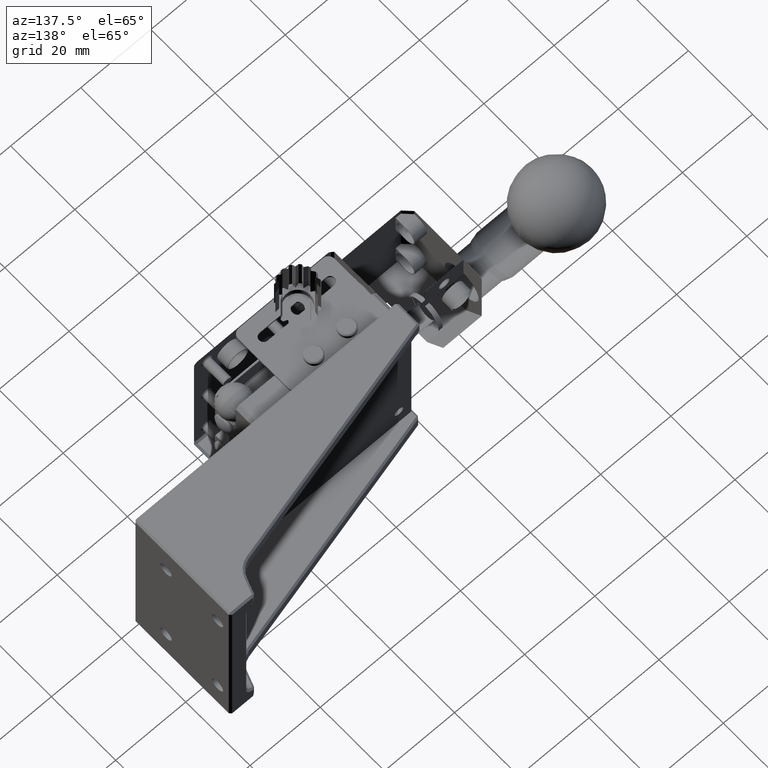
[diagram: clean part render]
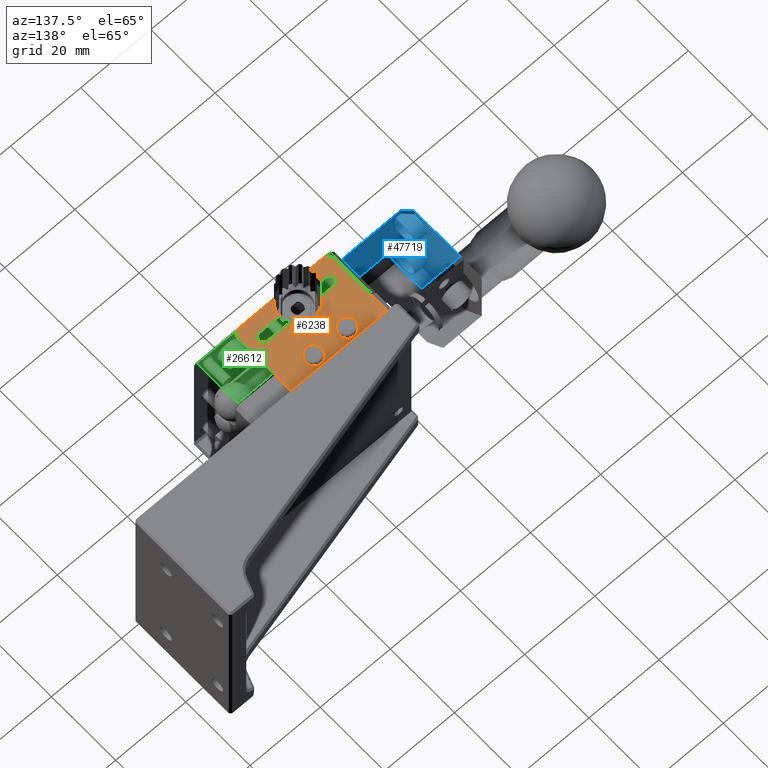
[diagram: same view with three faces highlighted in distinct colors, each labeled with its STEP entity id]
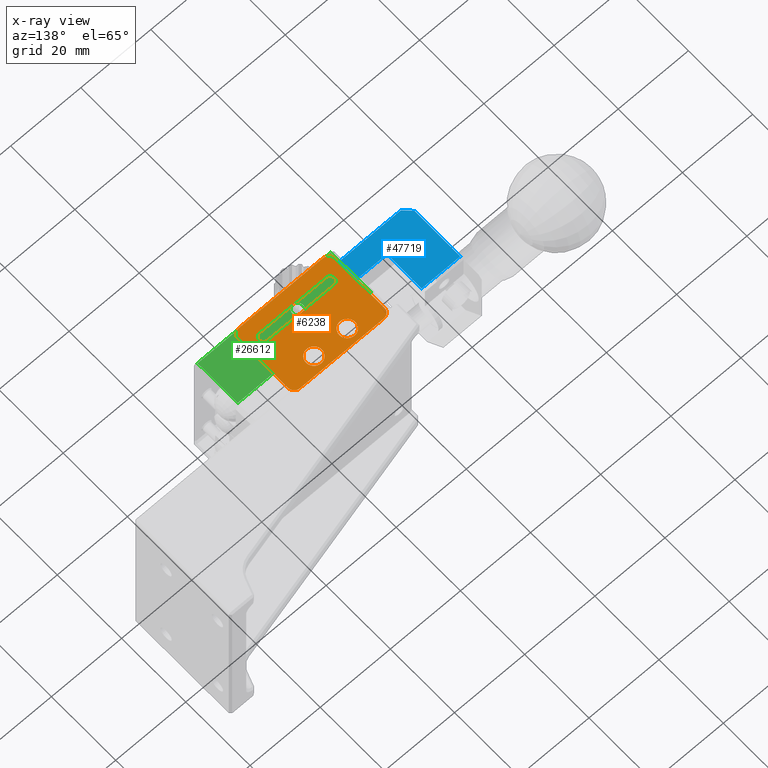
[diagram: x-ray of the same camera — body ghosted, the three highlighted faces saturated]
A machine part, auxiliary view with three faces highlighted in distinct colors.
The next image is the same camera in x-ray (body ghosted, the three faces saturated) — at least one of them is partly hidden behind the body in this view.
Their STEP definitions:

[orange] entity #6238 — the highlighted planar face has unit normal (0, 0, 1).
#180 = DIRECTION ( 'NONE',  ( 1.000000000000000000, 0.000000000000000000, 0.000000000000000000 ) ) ;
#458 = EDGE_LOOP ( 'NONE', ( #10148 ) ) ;
#655 = LINE ( 'NONE', #34571, #936 ) ;
#936 = VECTOR ( 'NONE', #39014, 1000.000000000000000 ) ;
#1630 = VECTOR ( 'NONE', #16943, 1000.000000000000000 ) ;
#1890 = EDGE_CURVE ( 'NONE', #22655, #7195, #43575, .T. ) ;
#2200 = EDGE_CURVE ( 'NONE', #26678, #38284, #20184, .T. ) ;
#2234 = DIRECTION ( 'NONE',  ( -1.000000000000000000, -0.000000000000000000, -0.000000000000000000 ) ) ;
#2297 = VERTEX_POINT ( 'NONE', #25562 ) ;
#2358 = EDGE_CURVE ( 'NONE', #36858, #7195, #36539, .T. ) ;
#3955 = VERTEX_POINT ( 'NONE', #11288 ) ;
#5935 = CARTESIAN_POINT ( 'NONE',  ( 48.25000000000000000, 19.00000000000000000, 20.50000000000000000 ) ) ;
#6238 = ADVANCED_FACE ( 'NONE', ( #46137, #45880, #42372, #35187 ), #30743, .T. ) ;
#7015 = DIRECTION ( 'NONE',  ( -1.000000000000000000, 0.000000000000000000, 0.000000000000000000 ) ) ;
#7195 = VERTEX_POINT ( 'NONE', #22923 ) ;
#7481 = CARTESIAN_POINT ( 'NONE',  ( 48.25000000000000000, 17.25000000000000000, 20.50000000000000000 ) ) ;
#8823 = ORIENTED_EDGE ( 'NONE', *, *, #18740, .T. ) ;
#9562 = CIRCLE ( 'NONE', #35677, 1.750000000000001554 ) ;
#9588 = VERTEX_POINT ( 'NONE', #28184 ) ;
#10148 = ORIENTED_EDGE ( 'NONE', *, *, #26745, .T. ) ;
#10933 = DIRECTION ( 'NONE',  ( -1.000000000000000000, 0.000000000000000000, 0.000000000000000000 ) ) ;
#11288 = CARTESIAN_POINT ( 'NONE',  ( 26.75000000000000355, 3.750000000000000000, 20.50000000000000000 ) ) ;
#11339 = VERTEX_POINT ( 'NONE', #36357 ) ;
#11784 = DIRECTION ( 'NONE',  ( 0.000000000000000000, 0.000000000000000000, -1.000000000000000000 ) ) ;
#12381 = ORIENTED_EDGE ( 'NONE', *, *, #2358, .F. ) ;
#12706 = EDGE_LOOP ( 'NONE', ( #45047, #14528, #12381, #16021, #48771, #46852, #8823, #26411 ) ) ;
#13489 = LINE ( 'NONE', #17422, #1630 ) ;
#14239 = CARTESIAN_POINT ( 'NONE',  ( 24.25000000000000000, 17.25000000000000000, 20.50000000000000000 ) ) ;
#14382 = AXIS2_PLACEMENT_3D ( 'NONE', #27354, #42674, #31054 ) ;
#14528 = ORIENTED_EDGE ( 'NONE', *, *, #1890, .T. ) ;
#14896 = DIRECTION ( 'NONE',  ( -0.000000000000000000, -0.000000000000000000, 1.000000000000000000 ) ) ;
#15906 = DIRECTION ( 'NONE',  ( 0.000000000000000000, 0.000000000000000000, 1.000000000000000000 ) ) ;
#16021 = ORIENTED_EDGE ( 'NONE', *, *, #21213, .T. ) ;
#16052 = AXIS2_PLACEMENT_3D ( 'NONE', #7481, #41392, #37914 ) ;
#16780 = AXIS2_PLACEMENT_3D ( 'NONE', #14239, #36732, #7015 ) ;
#16943 = DIRECTION ( 'NONE',  ( 1.000000000000000000, 0.000000000000000000, -0.000000000000000000 ) ) ;
#17422 = CARTESIAN_POINT ( 'NONE',  ( 24.25000000000000000, 6.250000000000000000, 20.50000000000000000 ) ) ;
#17621 = VECTOR ( 'NONE', #43871, 1000.000000000000000 ) ;
#18206 = EDGE_LOOP ( 'NONE', ( #43235, #25048, #35492, #31554 ) ) ;
#18740 = EDGE_CURVE ( 'NONE', #45980, #32410, #9562, .T. ) ;
#20184 = CIRCLE ( 'NONE', #39795, 1.250000000000001110 ) ;
#20547 = CARTESIAN_POINT ( 'NONE',  ( 22.50000000000000355, 17.25000000000000000, 20.50000000000000000 ) ) ;
#21213 = EDGE_CURVE ( 'NONE', #36858, #11339, #655, .T. ) ;
#21692 = LINE ( 'NONE', #47949, #27967 ) ;
#21693 = CIRCLE ( 'NONE', #38255, 2.250000000000001776 ) ;
#21720 = CARTESIAN_POINT ( 'NONE',  ( 45.75000000000000000, 3.750000000000000000, 20.50000000000000000 ) ) ;
#21840 = DIRECTION ( 'NONE',  ( -0.000000000000000000, -0.000000000000000000, -1.000000000000000000 ) ) ;
#21851 = EDGE_CURVE ( 'NONE', #44545, #22655, #37360, .T. ) ;
#21889 = LINE ( 'NONE', #36957, #41229 ) ;
#22392 = VERTEX_POINT ( 'NONE', #45459 ) ;
#22655 = VERTEX_POINT ( 'NONE', #26796 ) ;
#22665 = CARTESIAN_POINT ( 'NONE',  ( 50.00000000000000000, 17.25000000000000000, 20.50000000000000000 ) ) ;
#22923 = CARTESIAN_POINT ( 'NONE',  ( 24.25000000000000000, 19.00000000000000000, 20.50000000000000000 ) ) ;
#22953 = AXIS2_PLACEMENT_3D ( 'NONE', #27033, #42119, #38395 ) ;
#24910 = EDGE_CURVE ( 'NONE', #38284, #3955, #21692, .T. ) ;
#25048 = ORIENTED_EDGE ( 'NONE', *, *, #27452, .T. ) ;
#25380 = DIRECTION ( 'NONE',  ( -1.000000000000000000, -0.000000000000000000, 0.000000000000000000 ) ) ;
#25538 = DIRECTION ( 'NONE',  ( 1.000000000000000000, 0.000000000000000000, 0.000000000000000000 ) ) ;
#25562 = CARTESIAN_POINT ( 'NONE',  ( 43.25000000000000711, 15.50000000000000000, 20.50000000000000000 ) ) ;
#26411 = ORIENTED_EDGE ( 'NONE', *, *, #40251, .T. ) ;
#26678 = VERTEX_POINT ( 'NONE', #34334 ) ;
#26745 = EDGE_CURVE ( 'NONE', #2297, #2297, #21693, .T. ) ;
#26796 = CARTESIAN_POINT ( 'NONE',  ( 48.25000000000000000, 19.00000000000000711, 20.50000000000000000 ) ) ;
#27033 = CARTESIAN_POINT ( 'NONE',  ( 26.75000000000000355, 4.999999999999999112, 20.50000000000000000 ) ) ;
#27049 = CARTESIAN_POINT ( 'NONE',  ( 24.25000000000000000, 17.25000000000000000, 20.50000000000000000 ) ) ;
#27293 = DIRECTION ( 'NONE',  ( 1.000000000000000000, 0.000000000000000000, -0.000000000000000000 ) ) ;
#27354 = CARTESIAN_POINT ( 'NONE',  ( 24.25000000000000000, 1.749999999999998002, 20.50000000000000000 ) ) ;
#27452 = EDGE_CURVE ( 'NONE', #3955, #28280, #44304, .T. ) ;
#27967 = VECTOR ( 'NONE', #25380, 1000.000000000000000 ) ;
#28184 = CARTESIAN_POINT ( 'NONE',  ( 33.75000000000000000, 15.50000000000000000, 20.50000000000000000 ) ) ;
#28280 = VERTEX_POINT ( 'NONE', #39436 ) ;
#28302 = EDGE_CURVE ( 'NONE', #28280, #26678, #13489, .T. ) ;
#29032 = ORIENTED_EDGE ( 'NONE', *, *, #42357, .T. ) ;
#29736 = CARTESIAN_POINT ( 'NONE',  ( 48.25000000000000000, 1.749999999999998002, 20.50000000000000000 ) ) ;
#30743 = PLANE ( 'NONE',  #44559 ) ;
#31054 = DIRECTION ( 'NONE',  ( -1.000000000000000000, 0.000000000000000000, 0.000000000000000000 ) ) ;
#31554 = ORIENTED_EDGE ( 'NONE', *, *, #2200, .T. ) ;
#32410 = VERTEX_POINT ( 'NONE', #44268 ) ;
#33308 = CIRCLE ( 'NONE', #14382, 1.750000000000001554 ) ;
#33389 = CARTESIAN_POINT ( 'NONE',  ( 48.25000000000000000, -3.469446951953614189E-15, 20.50000000000000000 ) ) ;
#34087 = DIRECTION ( 'NONE',  ( -0.000000000000000000, -0.000000000000000000, -1.000000000000000000 ) ) ;
#34334 = CARTESIAN_POINT ( 'NONE',  ( 45.75000000000000000, 6.249999999999998224, 20.50000000000000000 ) ) ;
#34571 = CARTESIAN_POINT ( 'NONE',  ( 22.50000000000000355, 17.25000000000000000, 20.50000000000000000 ) ) ;
#35187 = FACE_BOUND ( 'NONE', #458, .T. ) ;
#35492 = ORIENTED_EDGE ( 'NONE', *, *, #28302, .T. ) ;
#35677 = AXIS2_PLACEMENT_3D ( 'NONE', #29736, #14896, #10933 ) ;
#36145 = EDGE_CURVE ( 'NONE', #11339, #22392, #33308, .T. ) ;
#36357 = CARTESIAN_POINT ( 'NONE',  ( 22.50000000000000355, 1.749999999999998002, 20.50000000000000000 ) ) ;
#36539 = CIRCLE ( 'NONE', #16780, 1.750000000000001554 ) ;
#36732 = DIRECTION ( 'NONE',  ( 0.000000000000000000, 0.000000000000000000, -1.000000000000000000 ) ) ;
#36858 = VERTEX_POINT ( 'NONE', #20547 ) ;
#36907 = CARTESIAN_POINT ( 'NONE',  ( 31.50000000000000000, 15.50000000000000000, 20.50000000000000000 ) ) ;
#36957 = CARTESIAN_POINT ( 'NONE',  ( 50.00000000000000000, 17.25000000000000000, 20.50000000000000000 ) ) ;
#37360 = CIRCLE ( 'NONE', #16052, 1.750000000000008438 ) ;
#37914 = DIRECTION ( 'NONE',  ( -1.000000000000000000, 0.000000000000000000, 0.000000000000000000 ) ) ;
#38255 = AXIS2_PLACEMENT_3D ( 'NONE', #41511, #34087, #180 ) ;
#38284 = VERTEX_POINT ( 'NONE', #21720 ) ;
#38395 = DIRECTION ( 'NONE',  ( -1.000000000000000000, 0.000000000000000000, 0.000000000000000000 ) ) ;
#38481 = DIRECTION ( 'NONE',  ( -1.000000000000000000, 0.000000000000000000, 0.000000000000000000 ) ) ;
#39014 = DIRECTION ( 'NONE',  ( 0.000000000000000000, -1.000000000000000000, -0.000000000000000000 ) ) ;
#39436 = CARTESIAN_POINT ( 'NONE',  ( 26.75000000000000355, 6.249999999999998224, 20.50000000000000000 ) ) ;
#39795 = AXIS2_PLACEMENT_3D ( 'NONE', #46439, #11784, #38481 ) ;
#39902 = CARTESIAN_POINT ( 'NONE',  ( 24.25000000000000000, -3.469446951953614189E-15, 20.50000000000000000 ) ) ;
#40251 = EDGE_CURVE ( 'NONE', #32410, #44545, #21889, .T. ) ;
#40489 = AXIS2_PLACEMENT_3D ( 'NONE', #36907, #21840, #25538 ) ;
#41229 = VECTOR ( 'NONE', #47663, 1000.000000000000000 ) ;
#41392 = DIRECTION ( 'NONE',  ( -0.000000000000000000, -0.000000000000000000, 1.000000000000000000 ) ) ;
#41485 = VECTOR ( 'NONE', #2234, 1000.000000000000000 ) ;
#41511 = CARTESIAN_POINT ( 'NONE',  ( 41.00000000000000000, 15.50000000000000000, 20.50000000000000000 ) ) ;
#42119 = DIRECTION ( 'NONE',  ( 0.000000000000000000, 0.000000000000000000, -1.000000000000000000 ) ) ;
#42357 = EDGE_CURVE ( 'NONE', #9588, #9588, #43656, .T. ) ;
#42372 = FACE_BOUND ( 'NONE', #48352, .T. ) ;
#42674 = DIRECTION ( 'NONE',  ( -0.000000000000000000, -0.000000000000000000, 1.000000000000000000 ) ) ;
#43041 = EDGE_CURVE ( 'NONE', #22392, #45980, #43375, .T. ) ;
#43235 = ORIENTED_EDGE ( 'NONE', *, *, #24910, .T. ) ;
#43375 = LINE ( 'NONE', #39902, #17621 ) ;
#43575 = LINE ( 'NONE', #5935, #41485 ) ;
#43656 = CIRCLE ( 'NONE', #40489, 2.250000000000001776 ) ;
#43871 = DIRECTION ( 'NONE',  ( 1.000000000000000000, 0.000000000000000000, -0.000000000000000000 ) ) ;
#44268 = CARTESIAN_POINT ( 'NONE',  ( 50.00000000000000000, 1.749999999999998002, 20.50000000000000000 ) ) ;
#44304 = CIRCLE ( 'NONE', #22953, 1.250000000000001110 ) ;
#44545 = VERTEX_POINT ( 'NONE', #22665 ) ;
#44559 = AXIS2_PLACEMENT_3D ( 'NONE', #27049, #15906, #27293 ) ;
#45047 = ORIENTED_EDGE ( 'NONE', *, *, #21851, .T. ) ;
#45459 = CARTESIAN_POINT ( 'NONE',  ( 24.25000000000000000, -3.469446951953614189E-15, 20.50000000000000000 ) ) ;
#45880 = FACE_BOUND ( 'NONE', #18206, .T. ) ;
#45980 = VERTEX_POINT ( 'NONE', #33389 ) ;
#46137 = FACE_OUTER_BOUND ( 'NONE', #12706, .T. ) ;
#46439 = CARTESIAN_POINT ( 'NONE',  ( 45.75000000000000000, 4.999999999999999112, 20.50000000000000000 ) ) ;
#46852 = ORIENTED_EDGE ( 'NONE', *, *, #43041, .T. ) ;
#47663 = DIRECTION ( 'NONE',  ( -0.000000000000000000, 1.000000000000000000, 0.000000000000000000 ) ) ;
#47949 = CARTESIAN_POINT ( 'NONE',  ( 24.25000000000000000, 3.750000000000000000, 20.50000000000000000 ) ) ;
#48352 = EDGE_LOOP ( 'NONE', ( #29032 ) ) ;
#48771 = ORIENTED_EDGE ( 'NONE', *, *, #36145, .T. ) ;

[blue] entity #47719 — the highlighted planar face has unit normal (0, 0, -1).
#219 = VECTOR ( 'NONE', #6430, 999.9999999999998863 ) ;
#2291 = DIRECTION ( 'NONE',  ( 1.000000000000000000, -0.000000000000000000, 0.000000000000000000 ) ) ;
#2782 = CARTESIAN_POINT ( 'NONE',  ( 0.000000000000000000, 16.30000000000000071, 12.00000000000000000 ) ) ;
#5480 = EDGE_CURVE ( 'NONE', #12854, #30931, #29712, .T. ) ;
#6430 = DIRECTION ( 'NONE',  ( -0.7071067811865479058, 0.7071067811865472397, 0.000000000000000000 ) ) ;
#6492 = DIRECTION ( 'NONE',  ( -1.000000000000000000, 0.000000000000000000, -0.000000000000000000 ) ) ;
#7260 = DIRECTION ( 'NONE',  ( 1.000000000000000000, 0.000000000000000000, -0.000000000000000000 ) ) ;
#8085 = VECTOR ( 'NONE', #17601, 1000.000000000000000 ) ;
#9109 = ORIENTED_EDGE ( 'NONE', *, *, #32107, .T. ) ;
#9422 = LINE ( 'NONE', #28736, #219 ) ;
#10903 = CARTESIAN_POINT ( 'NONE',  ( 0.000000000000000000, 16.30000000000000071, 12.00000000000000000 ) ) ;
#11394 = VECTOR ( 'NONE', #19384, 1000.000000000000000 ) ;
#11780 = EDGE_CURVE ( 'NONE', #48690, #33640, #40931, .T. ) ;
#12854 = VERTEX_POINT ( 'NONE', #21386 ) ;
#13222 = PLANE ( 'NONE',  #41861 ) ;
#14247 = CARTESIAN_POINT ( 'NONE',  ( 22.00000000000000000, 0.000000000000000000, 12.00000000000000000 ) ) ;
#14938 = CARTESIAN_POINT ( 'NONE',  ( 11.00000000000000000, 5.500000000000000000, 12.00000000000000000 ) ) ;
#16375 = LINE ( 'NONE', #34197, #11394 ) ;
#17601 = DIRECTION ( 'NONE',  ( -0.000000000000000000, 1.000000000000000000, 0.000000000000000000 ) ) ;
#18675 = LINE ( 'NONE', #44181, #46783 ) ;
#19384 = DIRECTION ( 'NONE',  ( -0.000000000000000000, -1.000000000000000000, -0.000000000000000000 ) ) ;
#21386 = CARTESIAN_POINT ( 'NONE',  ( 0.000000000000000000, 2.000000000000000000, 12.00000000000000000 ) ) ;
#22291 = DIRECTION ( 'NONE',  ( 0.000000000000000000, 1.000000000000000000, 0.000000000000000000 ) ) ;
#22713 = VERTEX_POINT ( 'NONE', #14938 ) ;
#24031 = LINE ( 'NONE', #36142, #8085 ) ;
#25185 = EDGE_CURVE ( 'NONE', #26753, #22713, #16375, .T. ) ;
#25540 = ORIENTED_EDGE ( 'NONE', *, *, #43131, .F. ) ;
#26072 = ORIENTED_EDGE ( 'NONE', *, *, #5480, .F. ) ;
#26323 = DIRECTION ( 'NONE',  ( 1.000000000000000000, 0.000000000000000000, -0.000000000000000000 ) ) ;
#26753 = VERTEX_POINT ( 'NONE', #38029 ) ;
#27570 = LINE ( 'NONE', #42897, #33053 ) ;
#28736 = CARTESIAN_POINT ( 'NONE',  ( 2.000000000000001776, 0.000000000000000000, 12.00000000000000000 ) ) ;
#29034 = CARTESIAN_POINT ( 'NONE',  ( 22.00000000000000000, 16.30000000000000071, 12.00000000000000000 ) ) ;
#29712 = LINE ( 'NONE', #10903, #44522 ) ;
#30931 = VERTEX_POINT ( 'NONE', #2782 ) ;
#32107 = EDGE_CURVE ( 'NONE', #33640, #44222, #24031, .T. ) ;
#32248 = FACE_OUTER_BOUND ( 'NONE', #33009, .T. ) ;
#32719 = ORIENTED_EDGE ( 'NONE', *, *, #39327, .F. ) ;
#32791 = EDGE_CURVE ( 'NONE', #30931, #26753, #27570, .T. ) ;
#33009 = EDGE_LOOP ( 'NONE', ( #32719, #40366, #43576, #26072, #25540, #47527, #9109 ) ) ;
#33053 = VECTOR ( 'NONE', #2291, 1000.000000000000000 ) ;
#33640 = VERTEX_POINT ( 'NONE', #41126 ) ;
#34197 = CARTESIAN_POINT ( 'NONE',  ( 11.00000000000000000, 16.30000000000000071, 12.00000000000000000 ) ) ;
#35656 = CARTESIAN_POINT ( 'NONE',  ( 21.00000000000000000, 5.500000000000000000, 12.00000000000000000 ) ) ;
#36142 = CARTESIAN_POINT ( 'NONE',  ( 21.00000000000000000, 12.50000000000000000, 12.00000000000000000 ) ) ;
#38029 = CARTESIAN_POINT ( 'NONE',  ( 11.00000000000000000, 16.30000000000000071, 12.00000000000000000 ) ) ;
#39327 = EDGE_CURVE ( 'NONE', #22713, #44222, #18675, .T. ) ;
#40366 = ORIENTED_EDGE ( 'NONE', *, *, #25185, .F. ) ;
#40931 = LINE ( 'NONE', #14247, #45619 ) ;
#41126 = CARTESIAN_POINT ( 'NONE',  ( 21.00000000000000000, 0.000000000000000000, 12.00000000000000000 ) ) ;
#41861 = AXIS2_PLACEMENT_3D ( 'NONE', #29034, #47381, #6492 ) ;
#42029 = CARTESIAN_POINT ( 'NONE',  ( 2.000000000000000888, -5.421010862427517856E-17, 12.00000000000000000 ) ) ;
#42897 = CARTESIAN_POINT ( 'NONE',  ( 22.00000000000000000, 16.30000000000000071, 12.00000000000000000 ) ) ;
#43131 = EDGE_CURVE ( 'NONE', #48690, #12854, #9422, .T. ) ;
#43576 = ORIENTED_EDGE ( 'NONE', *, *, #32791, .F. ) ;
#44181 = CARTESIAN_POINT ( 'NONE',  ( 11.00000000000000000, 5.500000000000000000, 12.00000000000000000 ) ) ;
#44222 = VERTEX_POINT ( 'NONE', #35656 ) ;
#44522 = VECTOR ( 'NONE', #22291, 1000.000000000000000 ) ;
#45619 = VECTOR ( 'NONE', #7260, 1000.000000000000000 ) ;
#46783 = VECTOR ( 'NONE', #26323, 1000.000000000000000 ) ;
#47381 = DIRECTION ( 'NONE',  ( 0.000000000000000000, 0.000000000000000000, -1.000000000000000000 ) ) ;
#47527 = ORIENTED_EDGE ( 'NONE', *, *, #11780, .T. ) ;
#47719 = ADVANCED_FACE ( 'NONE', ( #32248 ), #13222, .F. ) ;
#48690 = VERTEX_POINT ( 'NONE', #42029 ) ;

[green] entity #26612 — the highlighted planar face has unit normal (0, 0, -1).
#1656 = CARTESIAN_POINT ( 'NONE',  ( 22.00000000000000000, 12.50000000000000000, 20.00000000000000000 ) ) ;
#1940 = CARTESIAN_POINT ( 'NONE',  ( 34.50000000000000000, 5.000000000000000000, 20.00000000000000000 ) ) ;
#2179 = VERTEX_POINT ( 'NONE', #9034 ) ;
#2565 = ORIENTED_EDGE ( 'NONE', *, *, #30462, .F. ) ;
#2895 = ORIENTED_EDGE ( 'NONE', *, *, #32913, .T. ) ;
#5648 = DIRECTION ( 'NONE',  ( 0.000000000000000000, 0.000000000000000000, -1.000000000000000000 ) ) ;
#6136 = CARTESIAN_POINT ( 'NONE',  ( 22.00000000000000000, 12.50000000000000000, 20.00000000000000000 ) ) ;
#6827 = VERTEX_POINT ( 'NONE', #14601 ) ;
#7081 = ORIENTED_EDGE ( 'NONE', *, *, #7961, .F. ) ;
#7482 = LINE ( 'NONE', #48878, #9595 ) ;
#7568 = CARTESIAN_POINT ( 'NONE',  ( 22.00000000000000000, 12.50000000000000000, 20.00000000000000000 ) ) ;
#7961 = EDGE_CURVE ( 'NONE', #35890, #19168, #39773, .T. ) ;
#9034 = CARTESIAN_POINT ( 'NONE',  ( 60.00000000000000000, -5.362837838590756577E-15, 19.99999999999999645 ) ) ;
#9336 = VECTOR ( 'NONE', #24676, 1000.000000000000000 ) ;
#9421 = CARTESIAN_POINT ( 'NONE',  ( 22.00000000000000000, 12.50000000000000000, 20.00000000000000000 ) ) ;
#9595 = VECTOR ( 'NONE', #14932, 1000.000000000000000 ) ;
#10618 = AXIS2_PLACEMENT_3D ( 'NONE', #6136, #5648, #17544 ) ;
#11724 = VECTOR ( 'NONE', #47625, 1000.000000000000000 ) ;
#13957 = CARTESIAN_POINT ( 'NONE',  ( 22.00000000000000000, 0.000000000000000000, 20.00000000000000000 ) ) ;
#14601 = CARTESIAN_POINT ( 'NONE',  ( 60.00000000000000711, 12.50000000000000000, 19.99999999999999645 ) ) ;
#14929 = CARTESIAN_POINT ( 'NONE',  ( 36.00000000000000711, 5.000000000000000000, 20.00000000000000000 ) ) ;
#14932 = DIRECTION ( 'NONE',  ( -0.000000000000000000, -1.000000000000000000, -0.000000000000000000 ) ) ;
#15422 = DIRECTION ( 'NONE',  ( -1.000000000000000000, 0.000000000000000000, 0.000000000000000000 ) ) ;
#17288 = VERTEX_POINT ( 'NONE', #1940 ) ;
#17544 = DIRECTION ( 'NONE',  ( -1.000000000000000000, 0.000000000000000000, -0.000000000000000000 ) ) ;
#19168 = VERTEX_POINT ( 'NONE', #9421 ) ;
#24676 = DIRECTION ( 'NONE',  ( 0.000000000000000000, 1.000000000000000000, 0.000000000000000000 ) ) ;
#26612 = ADVANCED_FACE ( 'NONE', ( #43288, #47778 ), #39554, .F. ) ;
#29383 = LINE ( 'NONE', #7568, #33312 ) ;
#29522 = CIRCLE ( 'NONE', #42944, 1.500000000000001332 ) ;
#30462 = EDGE_CURVE ( 'NONE', #19168, #6827, #29383, .T. ) ;
#32822 = EDGE_LOOP ( 'NONE', ( #2895, #43035, #2565, #7081 ) ) ;
#32913 = EDGE_CURVE ( 'NONE', #35890, #2179, #48119, .T. ) ;
#33312 = VECTOR ( 'NONE', #48722, 1000.000000000000000 ) ;
#33721 = DIRECTION ( 'NONE',  ( -0.000000000000000000, -0.000000000000000000, 1.000000000000000000 ) ) ;
#35890 = VERTEX_POINT ( 'NONE', #39012 ) ;
#36278 = EDGE_CURVE ( 'NONE', #6827, #2179, #7482, .T. ) ;
#38672 = ORIENTED_EDGE ( 'NONE', *, *, #44799, .F. ) ;
#39012 = CARTESIAN_POINT ( 'NONE',  ( 22.00000000000000000, -4.065758146820642860E-17, 20.00000000000000000 ) ) ;
#39554 = PLANE ( 'NONE',  #10618 ) ;
#39773 = LINE ( 'NONE', #1656, #9336 ) ;
#42944 = AXIS2_PLACEMENT_3D ( 'NONE', #14929, #33721, #15422 ) ;
#43035 = ORIENTED_EDGE ( 'NONE', *, *, #36278, .F. ) ;
#43288 = FACE_OUTER_BOUND ( 'NONE', #32822, .T. ) ;
#44799 = EDGE_CURVE ( 'NONE', #17288, #17288, #29522, .T. ) ;
#47625 = DIRECTION ( 'NONE',  ( 1.000000000000000000, -0.000000000000000000, 0.000000000000000000 ) ) ;
#47778 = FACE_BOUND ( 'NONE', #48405, .T. ) ;
#48119 = LINE ( 'NONE', #13957, #11724 ) ;
#48405 = EDGE_LOOP ( 'NONE', ( #38672 ) ) ;
#48722 = DIRECTION ( 'NONE',  ( 1.000000000000000000, -0.000000000000000000, 0.000000000000000000 ) ) ;
#48878 = CARTESIAN_POINT ( 'NONE',  ( 60.00000000000000000, 12.50000000000000000, 20.00000000000000000 ) ) ;